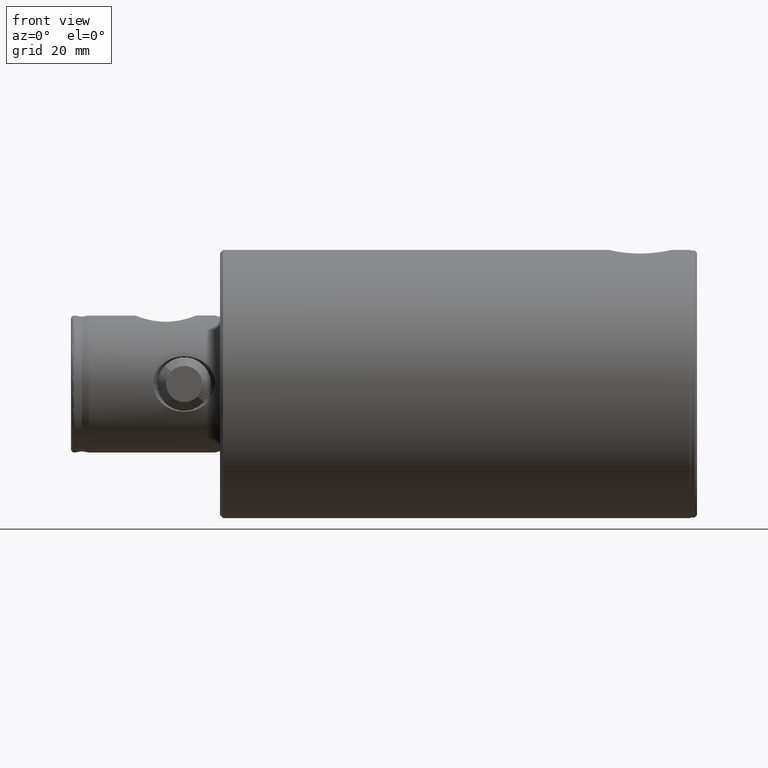
[diagram: clean part render]
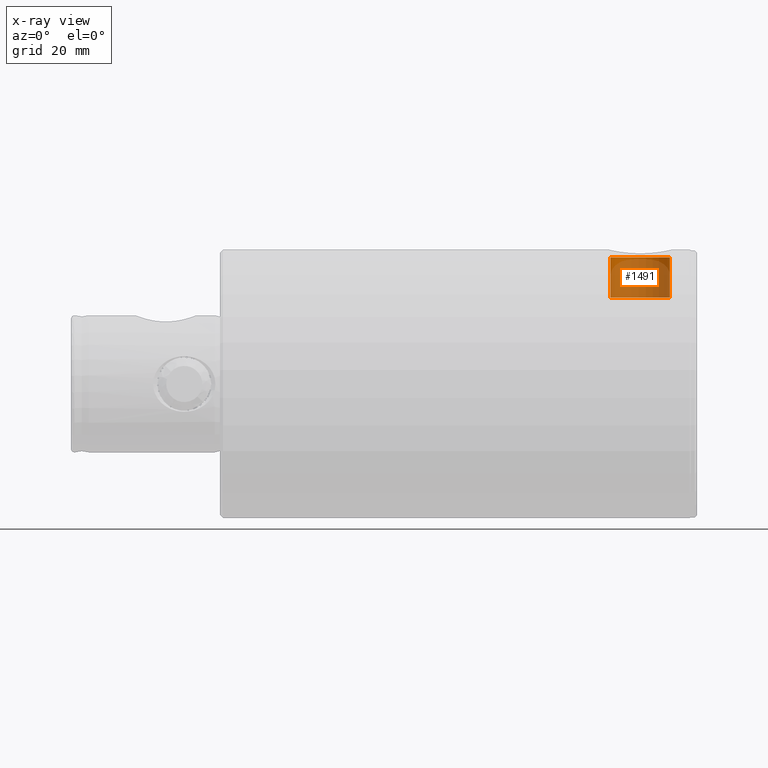
[diagram: x-ray — body ghosted, one internal face saturated and labeled with its STEP entity id]
A machine part, front view, then the same camera in x-ray: the body is ghosted and one INTERNAL B-rep face — a face not visible from any outside direction — is saturated and labeled: STEP entity #1491.
In plain terms, the highlighted cylindrical surface (edge-blend (fillet) strip) has radius 10 mm, axis along (0, 0, 1).
Its self-contained STEP definition (entity closure, byte-faithful):
#9 = AXIS2_PLACEMENT_3D ( 'NONE', #4440, #3290, #4850 ) ;
#162 = DIRECTION ( 'NONE',  ( -1.000000000000000000, -0.0000000000000000000, -0.0000000000000000000 ) ) ;
#235 = EDGE_CURVE ( 'NONE', #2581, #1598, #2722, .T. ) ;
#354 = CARTESIAN_POINT ( 'NONE',  ( 14.49999999999984700, 1.224646799147353100E-015, -10.00000000000000000 ) ) ;
#692 = DIRECTION ( 'NONE',  ( 0.0000000000000000000, 0.0000000000000000000, 1.000000000000000000 ) ) ;
#738 = DIRECTION ( 'NONE',  ( -1.000000000000000000, 0.0000000000000000000, 0.0000000000000000000 ) ) ;
#796 = EDGE_CURVE ( 'NONE', #2581, #4296, #4049, .T. ) ;
#887 = CARTESIAN_POINT ( 'NONE',  ( 1.000000000000007800, 0.0000000000000000000, 10.00000000000000000 ) ) ;
#1007 = EDGE_LOOP ( 'NONE', ( #4293, #2661, #1020, #3219 ) ) ;
#1020 = ORIENTED_EDGE ( 'NONE', *, *, #3050, .T. ) ;
#1095 = CIRCLE ( 'NONE', #9, 10.00000000000000000 ) ;
#1192 = DIRECTION ( 'NONE',  ( 0.0000000000000000000, 0.0000000000000000000, -1.000000000000000000 ) ) ;
#1467 = DIRECTION ( 'NONE',  ( -1.000000000000000000, -0.0000000000000000000, -0.0000000000000000000 ) ) ;
#1491 = ADVANCED_FACE ( 'NONE', ( #2705 ), #4281, .T. ) ;
#1598 = VERTEX_POINT ( 'NONE', #354 ) ;
#1826 = CARTESIAN_POINT ( 'NONE',  ( 1.000000000000007800, 1.224646799147353100E-015, -10.00000000000000000 ) ) ;
#1844 = VECTOR ( 'NONE', #2817, 1000.000000000000000 ) ;
#2465 = CARTESIAN_POINT ( 'NONE',  ( 14.49999999999984700, 0.0000000000000000000, 10.00000000000000000 ) ) ;
#2581 = VERTEX_POINT ( 'NONE', #2465 ) ;
#2616 = EDGE_CURVE ( 'NONE', #1598, #4670, #4901, .T. ) ;
#2661 = ORIENTED_EDGE ( 'NONE', *, *, #2616, .T. ) ;
#2705 = FACE_OUTER_BOUND ( 'NONE', #1007, .T. ) ;
#2722 = CIRCLE ( 'NONE', #3870, 10.00000000000000000 ) ;
#2817 = DIRECTION ( 'NONE',  ( -1.000000000000000000, -0.0000000000000000000, -0.0000000000000000000 ) ) ;
#3050 = EDGE_CURVE ( 'NONE', #4670, #4296, #1095, .T. ) ;
#3166 = AXIS2_PLACEMENT_3D ( 'NONE', #3761, #1467, #692 ) ;
#3219 = ORIENTED_EDGE ( 'NONE', *, *, #796, .F. ) ;
#3290 = DIRECTION ( 'NONE',  ( 1.000000000000000000, -0.0000000000000000000, -0.0000000000000000000 ) ) ;
#3761 = CARTESIAN_POINT ( 'NONE',  ( 29.00000000000000000, 0.0000000000000000000, 0.0000000000000000000 ) ) ;
#3836 = VECTOR ( 'NONE', #162, 1000.000000000000000 ) ;
#3837 = CARTESIAN_POINT ( 'NONE',  ( 14.49999999999984700, 0.0000000000000000000, 0.0000000000000000000 ) ) ;
#3870 = AXIS2_PLACEMENT_3D ( 'NONE', #3837, #738, #1192 ) ;
#4049 = LINE ( 'NONE', #4351, #1844 ) ;
#4083 = CARTESIAN_POINT ( 'NONE',  ( 29.00000000000000000, 1.224646799147353100E-015, -10.00000000000000000 ) ) ;
#4281 = CYLINDRICAL_SURFACE ( 'NONE', #3166, 10.00000000000000000 ) ;
#4293 = ORIENTED_EDGE ( 'NONE', *, *, #235, .T. ) ;
#4296 = VERTEX_POINT ( 'NONE', #887 ) ;
#4351 = CARTESIAN_POINT ( 'NONE',  ( 29.00000000000000000, 0.0000000000000000000, 10.00000000000000000 ) ) ;
#4440 = CARTESIAN_POINT ( 'NONE',  ( 1.000000000000007800, 0.0000000000000000000, 0.0000000000000000000 ) ) ;
#4670 = VERTEX_POINT ( 'NONE', #1826 ) ;
#4850 = DIRECTION ( 'NONE',  ( 0.0000000000000000000, 0.0000000000000000000, -1.000000000000000000 ) ) ;
#4901 = LINE ( 'NONE', #4083, #3836 ) ;